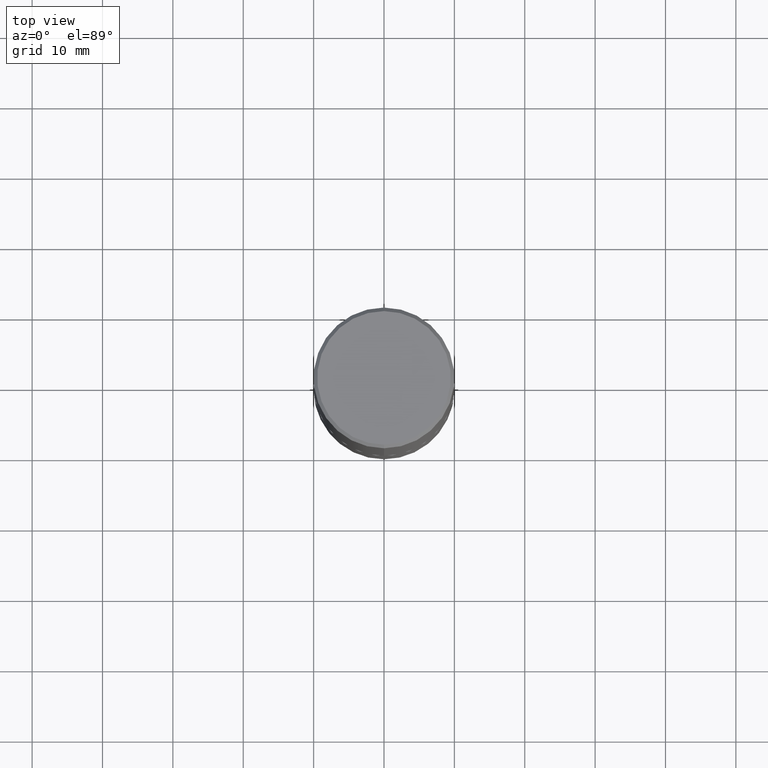
[diagram: clean part render]
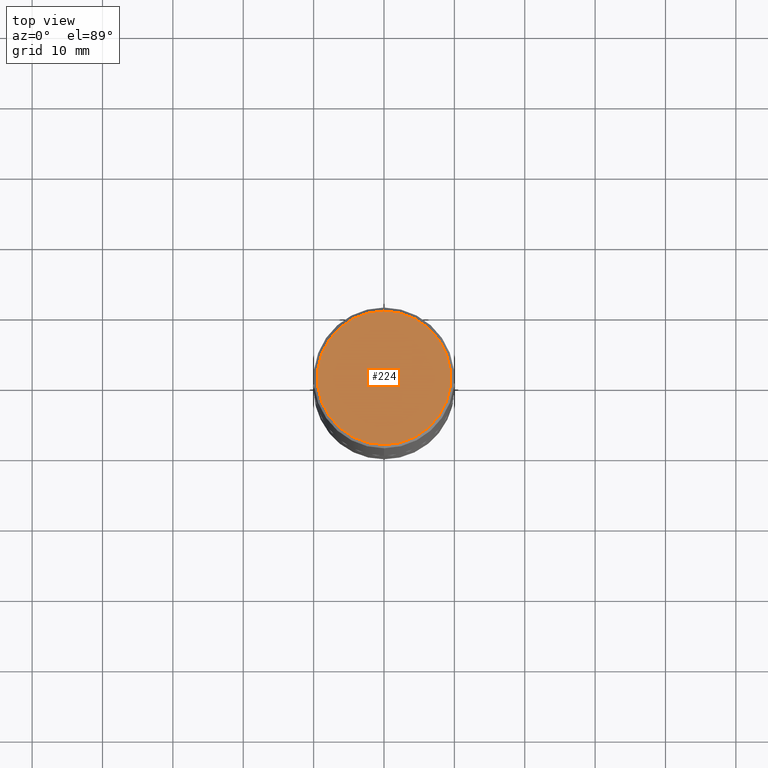
[diagram: same view with one face highlighted and labeled with its STEP entity id]
A machine part, top view. The second image highlights one B-rep face of the part: STEP entity #224.
In plain terms, the highlighted planar face has unit normal (0, -0, -1).
Its self-contained STEP definition (entity closure, byte-faithful):
#6 = AXIS2_PLACEMENT_3D ( 'NONE', #310, #59, #408 ) ;
#27 = DIRECTION ( 'NONE',  ( -2.444494936922263557E-29, 3.492875975056775902E-15, 1.000000000000000000 ) ) ;
#57 = EDGE_LOOP ( 'NONE', ( #242, #116 ) ) ;
#59 = DIRECTION ( 'NONE',  ( -2.444494936922263557E-29, 3.492875975056775902E-15, 1.000000000000000000 ) ) ;
#68 = AXIS2_PLACEMENT_3D ( 'NONE', #287, #27, #243 ) ;
#116 = ORIENTED_EDGE ( 'NONE', *, *, #155, .T. ) ;
#133 = VERTEX_POINT ( 'NONE', #404 ) ;
#142 = CIRCLE ( 'NONE', #68, 0.3737000000000001432 ) ;
#152 = FACE_OUTER_BOUND ( 'NONE', #57, .T. ) ;
#155 = EDGE_CURVE ( 'NONE', #133, #293, #345, .T. ) ;
#182 = CARTESIAN_POINT ( 'NONE',  ( 2.609533152651358592E-15, 0.3737000000000001432, -1.413874232599761583E-15 ) ) ;
#191 = DIRECTION ( 'NONE',  ( 6.982962677686265922E-15, 1.000000000000000000, -3.492875975056776297E-15 ) ) ;
#195 = EDGE_CURVE ( 'NONE', #293, #133, #142, .T. ) ;
#224 = ADVANCED_FACE ( 'NONE', ( #152 ), #378, .F. ) ;
#242 = ORIENTED_EDGE ( 'NONE', *, *, #195, .T. ) ;
#243 = DIRECTION ( 'NONE',  ( -6.982962677686265922E-15, -1.000000000000000000, 3.492875975056776297E-15 ) ) ;
#264 = CARTESIAN_POINT ( 'NONE',  ( 2.679362779428221102E-15, 0.3737000000000001432, -1.522460713320805199E-15 ) ) ;
#280 = DIRECTION ( 'NONE',  ( 2.444494936922262996E-29, -3.492875975056776297E-15, -1.000000000000000000 ) ) ;
#287 = CARTESIAN_POINT ( 'NONE',  ( 5.308782046815965529E-45, -7.585582194529983900E-31, -2.171729614420873553E-16 ) ) ;
#293 = VERTEX_POINT ( 'NONE', #264 ) ;
#310 = CARTESIAN_POINT ( 'NONE',  ( 5.308782046815965529E-45, -7.585582194529983900E-31, -2.171729614420873553E-16 ) ) ;
#345 = CIRCLE ( 'NONE', #6, 0.3737000000000001432 ) ;
#378 = PLANE ( 'NONE',  #379 ) ;
#379 = AXIS2_PLACEMENT_3D ( 'NONE', #182, #280, #191 ) ;
#404 = CARTESIAN_POINT ( 'NONE',  ( -2.632373081744936710E-15, -0.3737000000000001432, 1.088114790436630537E-15 ) ) ;
#408 = DIRECTION ( 'NONE',  ( -6.982962677686265922E-15, -1.000000000000000000, 3.492875975056776297E-15 ) ) ;